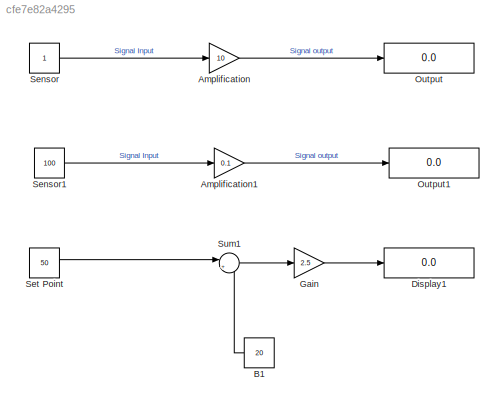
MODEL slx_cfe7e82a4295
KIND model
CONFIG AbsTol = auto
CONFIG EnableMultiTasking = off
CONFIG FixedStep = auto
CONFIG MaxStep = auto
CONFIG MinStep = auto
CONFIG RelTol = 1e-3
CONFIG SampleTimeConstraint = Unconstrained
CONFIG SolverName = VariableStepAuto
CONFIG StartTime = 0.0
CONFIG StopTime = 10.0
BLOCK [Gain] Amplification
  Gain = 10
BLOCK [Gain] Amplification1
  Gain = 0.1
BLOCK [Constant] B1
  Value = 20
BLOCK [Display] Display1
  Decimation = 1
BLOCK [Gain] Gain
  Gain = 2.5
BLOCK [Display] Output
  Decimation = 1
BLOCK [Display] Output1
  Decimation = 1
BLOCK [Constant] Sensor
BLOCK [Constant] Sensor1
  Value = 100
BLOCK [Constant] Set Point 
  Value = 50
BLOCK [Sum] Sum1
  Inputs = |+-
LINE Amplification1:1 -> Output1:1
LINE Amplification:1 -> Output:1
LINE B1:1 -> Sum1:2
LINE Gain:1 -> Display1:1
LINE Sensor1:1 -> Amplification1:1
LINE Sensor:1 -> Amplification:1
LINE Set Point :1 -> Sum1:1
LINE Sum1:1 -> Gain:1
